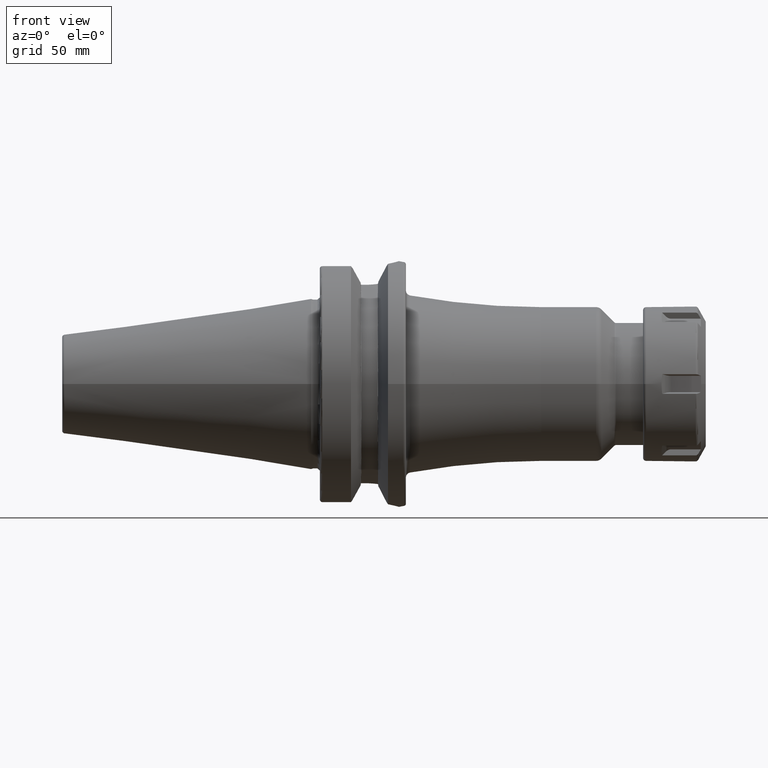
[diagram: clean part render]
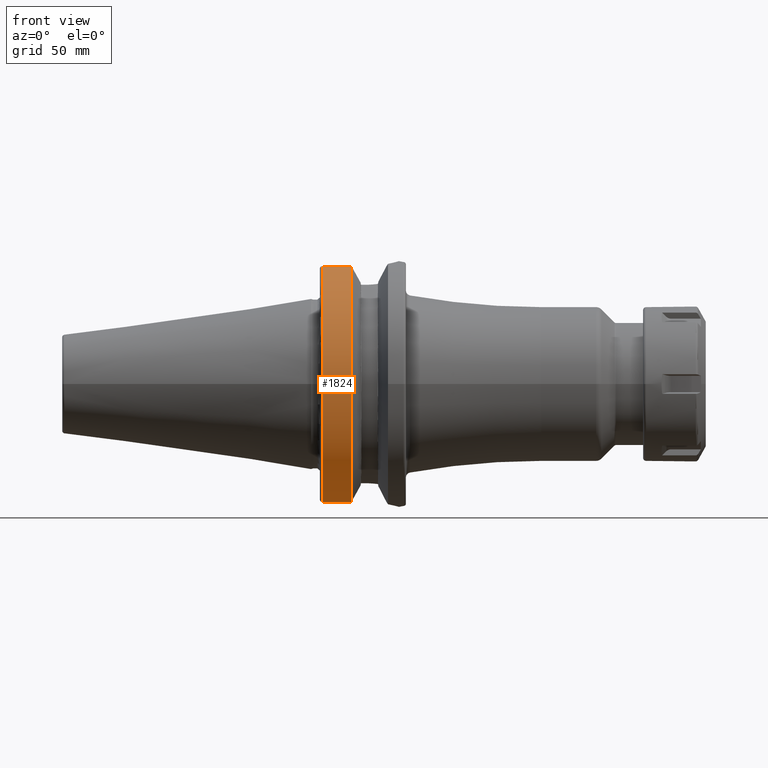
[diagram: same view with one face highlighted and labeled with its STEP entity id]
A machine part, front view. The second image highlights one B-rep face of the part: STEP entity #1824.
In plain terms, the highlighted cylindrical surface (partial cylindrical patch) has radius 49.9875 mm, axis along (1, 0, 0).
Its self-contained STEP definition (entity closure, byte-faithful):
#209=CARTESIAN_POINT('',(1.566933176383E1,0.E0,0.E0));
#210=DIRECTION('',(1.E0,0.E0,0.E0));
#211=DIRECTION('',(0.E0,-2.837968869610E-1,9.588844179312E-1));
#212=AXIS2_PLACEMENT_3D('',#209,#210,#211);
#214=DIRECTION('',(1.E0,-7.302338068593E-8,9.708531994237E-8));
#215=VECTOR('',#214,1.166933176412E1);
#216=CARTESIAN_POINT('',(3.999999999701E0,-1.386327248661E1,-4.802665840350E1));
#217=LINE('',#216,#215);
#218=CARTESIAN_POINT('',(4.E0,0.E0,0.E0));
#219=DIRECTION('',(-1.E0,0.E0,0.E0));
#220=DIRECTION('',(0.E0,-2.773348004750E-1,-9.607733387462E-1));
#221=AXIS2_PLACEMENT_3D('',#218,#219,#220);
#223=DIRECTION('',(-9.999999999989E-1,8.887251744650E-7,1.189757232592E-6));
#224=VECTOR('',#223,1.166933177277E1);
#225=CARTESIAN_POINT('',(1.566933176383E1,-1.418629688696E1,4.793223484134E1));
#226=LINE('',#225,#224);
#603=CARTESIAN_POINT('',(3.999999999701E0,-1.386327248661E1,-4.802665840350E1));
#1414=CARTESIAN_POINT('',(1.566933176383E1,-1.418629688696E1,4.793223484134E1));
#1415=CARTESIAN_POINT('',(1.566933176383E1,-1.386327333875E1,
-4.802665727057E1));
#1416=VERTEX_POINT('',#1414);
#1417=VERTEX_POINT('',#1415);
#1430=CARTESIAN_POINT('',(4.E0,-1.418631682991E1,4.793222893890E1));
#1431=VERTEX_POINT('',#1430);
#1452=VERTEX_POINT('',#603);
#1810=CARTESIAN_POINT('',(-1.0879E2,0.E0,0.E0));
#1811=DIRECTION('',(1.E0,0.E0,0.E0));
#1812=DIRECTION('',(0.E0,-1.E0,0.E0));
#1813=AXIS2_PLACEMENT_3D('',#1810,#1811,#1812);
#1814=CYLINDRICAL_SURFACE('',#1813,4.99875E1);
#1815=ORIENTED_EDGE('',*,*,#1801,.T.);
#1817=ORIENTED_EDGE('',*,*,#1816,.F.);
#1819=ORIENTED_EDGE('',*,*,#1818,.T.);
#1821=ORIENTED_EDGE('',*,*,#1820,.F.);
#1822=EDGE_LOOP('',(#1815,#1817,#1819,#1821));
#1823=FACE_OUTER_BOUND('',#1822,.F.);
#1824=ADVANCED_FACE('',(#1823),#1814,.T.);
#213=CIRCLE('',#212,4.99875E1);
#222=CIRCLE('',#221,4.99875E1);
#1801=EDGE_CURVE('',#1416,#1417,#213,.T.);
#1816=EDGE_CURVE('',#1452,#1417,#217,.T.);
#1818=EDGE_CURVE('',#1452,#1431,#222,.T.);
#1820=EDGE_CURVE('',#1416,#1431,#226,.T.);